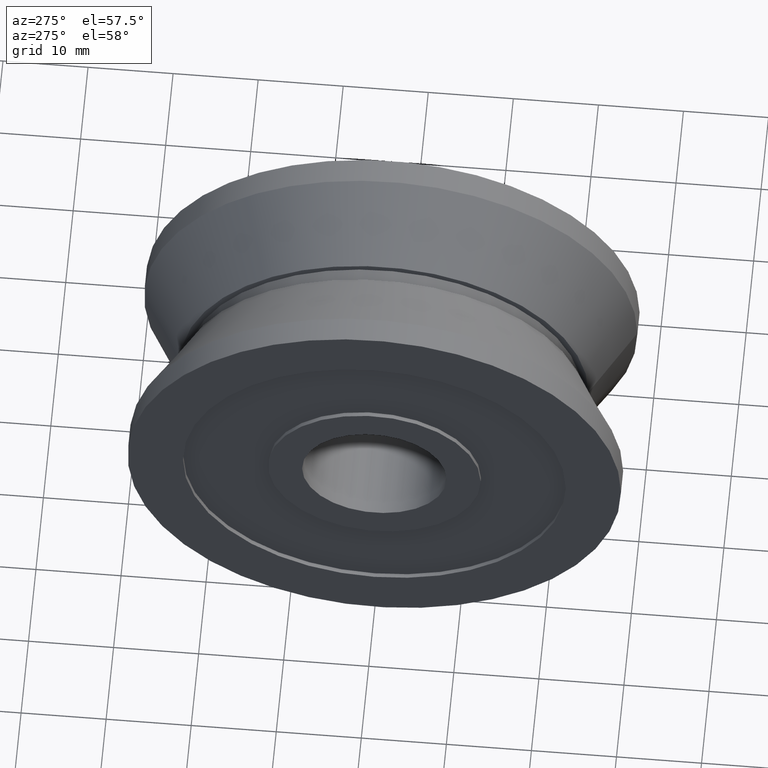
[diagram: clean part render]
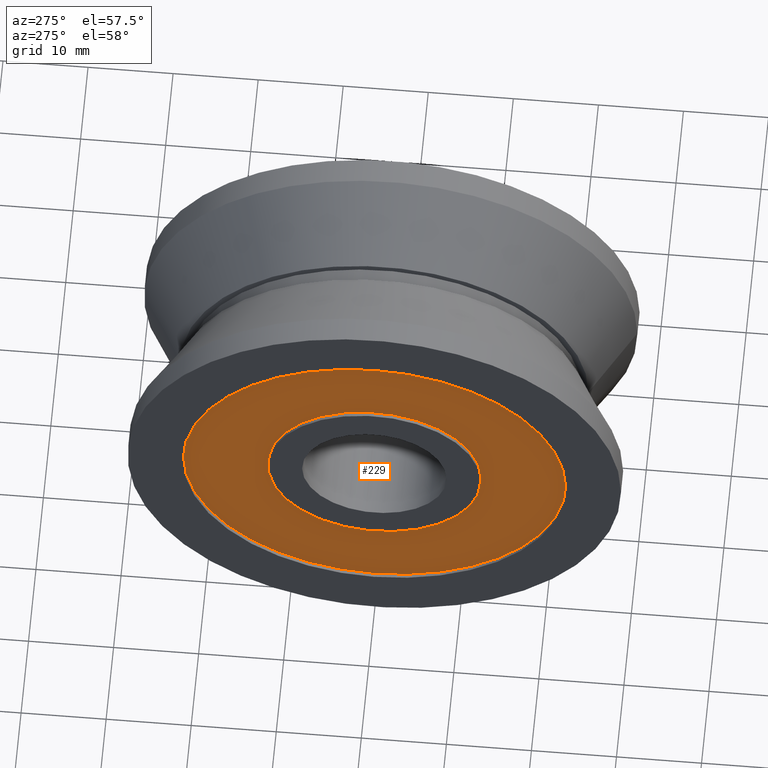
[diagram: same view with one face highlighted and labeled with its STEP entity id]
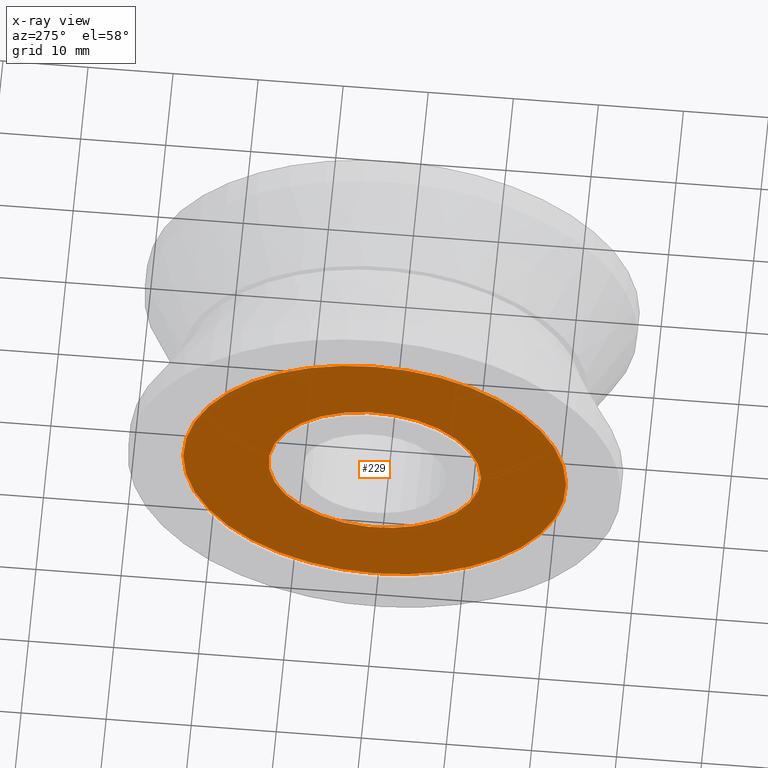
[diagram: x-ray of the same camera — body ghosted, the highlighted face saturated]
A machine part, auxiliary view. The second image highlights one B-rep face of the part: STEP entity #229.
The next image is the same camera in x-ray: the body ghosted, the highlighted face saturated — about 0% of this face is hidden behind the body in this view.
In plain terms, the highlighted planar face has unit normal (-1, 0, 0).
Its self-contained STEP definition (entity closure, byte-faithful):
#48=FACE_BOUND('',#77,.T.);
#57=FACE_OUTER_BOUND('',#76,.T.);
#76=EDGE_LOOP('',(#169));
#77=EDGE_LOOP('',(#170));
#101=CIRCLE('',#272,12.5);
#102=CIRCLE('',#274,22.5);
#119=VERTEX_POINT('',#395);
#120=VERTEX_POINT('',#399);
#137=EDGE_CURVE('',#119,#119,#101,.T.);
#139=EDGE_CURVE('',#120,#120,#102,.T.);
#169=ORIENTED_EDGE('',*,*,#139,.F.);
#170=ORIENTED_EDGE('',*,*,#137,.T.);
#220=PLANE('',#273);
#229=ADVANCED_FACE('',(#57,#48),#220,.T.);
#272=AXIS2_PLACEMENT_3D('',#396,#314,#315);
#273=AXIS2_PLACEMENT_3D('',#398,#317,#318);
#274=AXIS2_PLACEMENT_3D('',#400,#319,#320);
#314=DIRECTION('center_axis',(1.,0.,0.));
#315=DIRECTION('ref_axis',(0.,1.,0.));
#317=DIRECTION('center_axis',(-1.,0.,0.));
#318=DIRECTION('ref_axis',(0.,0.,1.));
#319=DIRECTION('center_axis',(1.,0.,0.));
#320=DIRECTION('ref_axis',(0.,1.,0.));
#395=CARTESIAN_POINT('',(-12.,-12.5,-1.53080849893419E-15));
#396=CARTESIAN_POINT('Origin',(-12.,0.,0.));
#398=CARTESIAN_POINT('Origin',(-12.,17.5,0.));
#399=CARTESIAN_POINT('',(-12.,-22.5,-2.75545529808154E-15));
#400=CARTESIAN_POINT('Origin',(-12.,0.,0.));